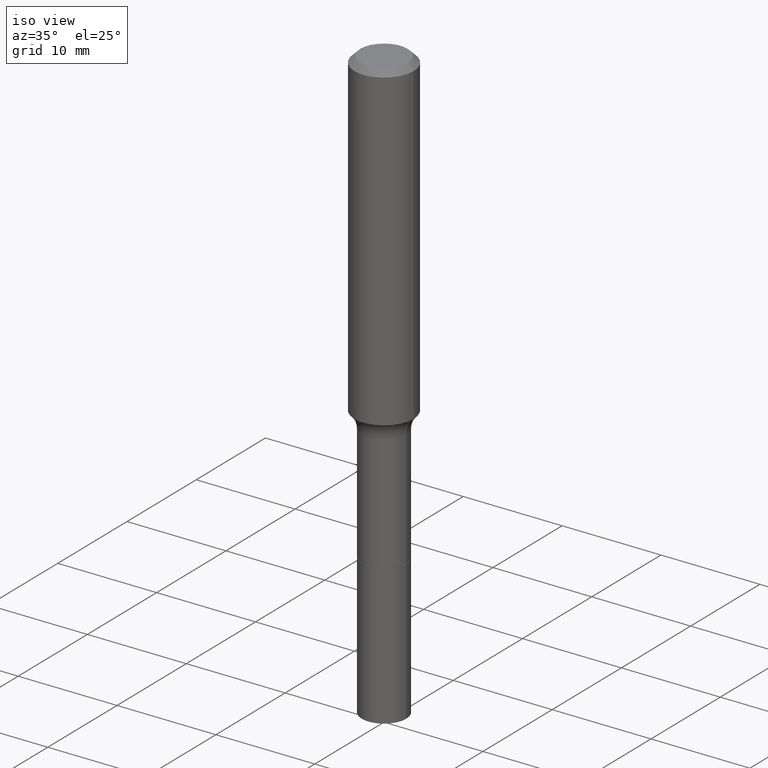
[diagram: clean part render]
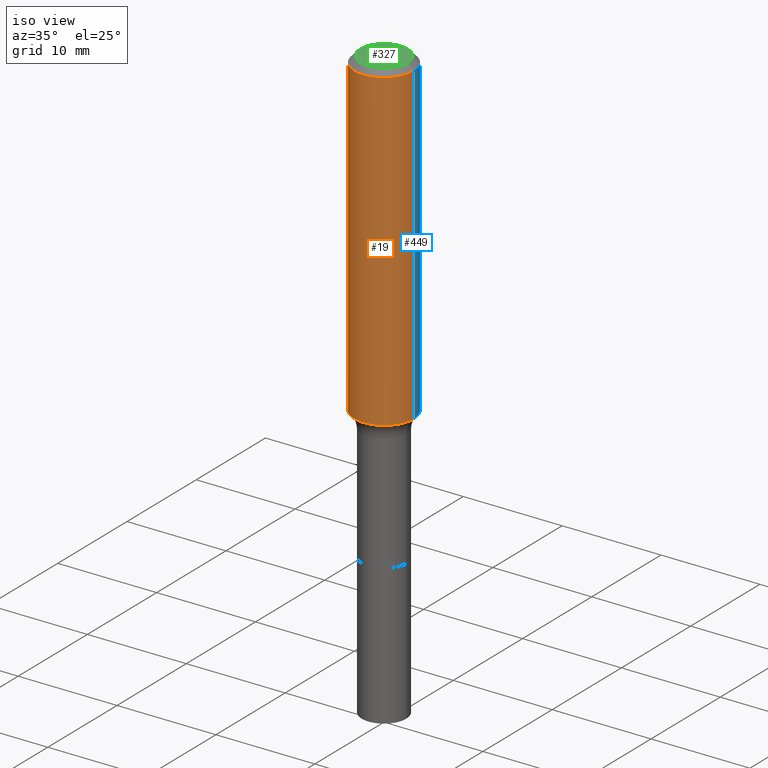
[diagram: same view with three faces highlighted in distinct colors, each labeled with its STEP entity id]
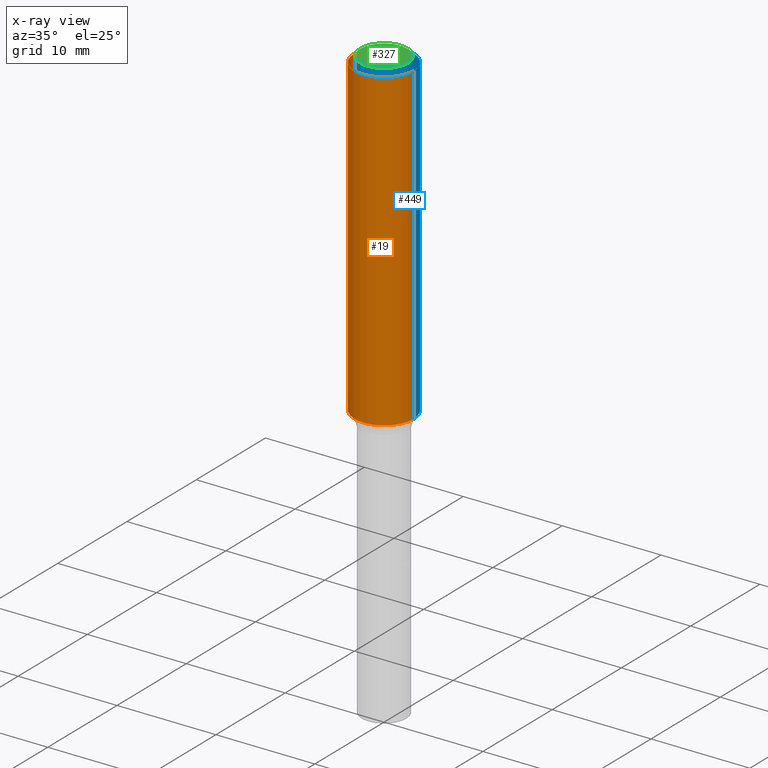
[diagram: x-ray of the same camera — body ghosted, the three highlighted faces saturated]
A machine part, iso view with three faces highlighted in distinct colors.
The next image is the same camera in x-ray (body ghosted, the three faces saturated) — at least one of them is partly hidden behind the body in this view.
Their STEP definitions:

[orange] entity #19 — the highlighted cylindrical surface (edge-blend (fillet) strip) has radius 2.9997 mm, axis along (-0, 0, 1).
#7 = VERTEX_POINT ( 'NONE', #48 ) ;
#19 = ADVANCED_FACE ( 'NONE', ( #443 ), #323, .T. ) ;
#21 = VECTOR ( 'NONE', #253, 39.37007874015748143 ) ;
#38 = ORIENTED_EDGE ( 'NONE', *, *, #217, .T. ) ;
#48 = CARTESIAN_POINT ( 'NONE',  ( 0.1180999999999999966, -9.071566814582237199E-16, -0.02362000000000014435 ) ) ;
#67 = CARTESIAN_POINT ( 'NONE',  ( 5.776197320209328408E-31, -8.246878922347560526E-17, -0.02362000000000014435 ) ) ;
#85 = EDGE_CURVE ( 'NONE', #350, #109, #164, .T. ) ;
#102 = VECTOR ( 'NONE', #473, 39.37007874015748143 ) ;
#109 = VERTEX_POINT ( 'NONE', #122 ) ;
#112 = AXIS2_PLACEMENT_3D ( 'NONE', #203, #136, #326 ) ;
#122 = CARTESIAN_POINT ( 'NONE',  ( 0.1181000000000001493, -5.276509151379285802E-15, -1.275052285005076280 ) ) ;
#136 = DIRECTION ( 'NONE',  ( -2.445468806185136597E-29, 3.491481338843145583E-15, 1.000000000000000000 ) ) ;
#153 = DIRECTION ( 'NONE',  ( 1.000000000000000000, -6.982962677686266711E-15, 0.000000000000000000 ) ) ;
#164 = CIRCLE ( 'NONE', #377, 0.1181000000000001493 ) ;
#203 = CARTESIAN_POINT ( 'NONE',  ( 0.000000000000000000, 0.000000000000000000, 0.000000000000000000 ) ) ;
#217 = EDGE_CURVE ( 'NONE', #109, #7, #328, .T. ) ;
#233 = CARTESIAN_POINT ( 'NONE',  ( -0.1181000000000001493, -3.612670288211856187E-15, -1.275052285005076280 ) ) ;
#242 = EDGE_CURVE ( 'NONE', #500, #7, #445, .T. ) ;
#245 = CARTESIAN_POINT ( 'NONE',  ( 3.118100589234994033E-29, -4.451821259144535962E-15, -1.275052285005076280 ) ) ;
#253 = DIRECTION ( 'NONE',  ( -2.445468806185136877E-29, 3.491481338843145188E-15, 1.000000000000000000 ) ) ;
#280 = DIRECTION ( 'NONE',  ( -2.445468806185136597E-29, 3.491481338843145583E-15, 1.000000000000000000 ) ) ;
#298 = ORIENTED_EDGE ( 'NONE', *, *, #85, .T. ) ;
#305 = CARTESIAN_POINT ( 'NONE',  ( -0.1181000000000000660, 8.391509709326787887E-16, -5.809262341591047287E-30 ) ) ;
#310 = CARTESIAN_POINT ( 'NONE',  ( -0.1180999999999999966, -1.427994053251326329E-15, -0.02362000000000014435 ) ) ;
#323 = CYLINDRICAL_SURFACE ( 'NONE', #112, 0.1181000000000000660 ) ;
#326 = DIRECTION ( 'NONE',  ( 1.000000000000000000, -6.982962677686266711E-15, 4.876176775795936353E-29 ) ) ;
#328 = LINE ( 'NONE', #499, #21 ) ;
#338 = AXIS2_PLACEMENT_3D ( 'NONE', #67, #475, #153 ) ;
#339 = LINE ( 'NONE', #305, #102 ) ;
#350 = VERTEX_POINT ( 'NONE', #233 ) ;
#377 = AXIS2_PLACEMENT_3D ( 'NONE', #245, #280, #404 ) ;
#404 = DIRECTION ( 'NONE',  ( 1.000000000000000000, -6.982962677686264344E-15, 0.000000000000000000 ) ) ;
#406 = ORIENTED_EDGE ( 'NONE', *, *, #417, .F. ) ;
#417 = EDGE_CURVE ( 'NONE', #350, #500, #339, .T. ) ;
#436 = ORIENTED_EDGE ( 'NONE', *, *, #242, .F. ) ;
#443 = FACE_OUTER_BOUND ( 'NONE', #463, .T. ) ;
#445 = CIRCLE ( 'NONE', #338, 0.1180999999999999966 ) ;
#463 = EDGE_LOOP ( 'NONE', ( #406, #298, #38, #436 ) ) ;
#473 = DIRECTION ( 'NONE',  ( -2.445468806185136877E-29, 3.491481338843145188E-15, 1.000000000000000000 ) ) ;
#475 = DIRECTION ( 'NONE',  ( -2.445468806185136597E-29, 3.491481338843145583E-15, 1.000000000000000000 ) ) ;
#499 = CARTESIAN_POINT ( 'NONE',  ( 0.1181000000000000660, -8.246878922347485584E-16, 5.758764772215003944E-30 ) ) ;
#500 = VERTEX_POINT ( 'NONE', #310 ) ;

[blue] entity #449 — the highlighted cylindrical surface (edge-blend (fillet) strip) has radius 2.9997 mm, axis along (-0, 0, 1).
#7 = VERTEX_POINT ( 'NONE', #48 ) ;
#21 = VECTOR ( 'NONE', #253, 39.37007874015748143 ) ;
#34 = CIRCLE ( 'NONE', #461, 0.1180999999999999966 ) ;
#35 = EDGE_CURVE ( 'NONE', #7, #500, #34, .T. ) ;
#48 = CARTESIAN_POINT ( 'NONE',  ( 0.1180999999999999966, -9.071566814582237199E-16, -0.02362000000000014435 ) ) ;
#59 = ORIENTED_EDGE ( 'NONE', *, *, #417, .T. ) ;
#74 = DIRECTION ( 'NONE',  ( 1.000000000000000000, -6.982962677686264344E-15, 0.000000000000000000 ) ) ;
#100 = CARTESIAN_POINT ( 'NONE',  ( 3.118100589234994033E-29, -4.451821259144535962E-15, -1.275052285005076280 ) ) ;
#102 = VECTOR ( 'NONE', #473, 39.37007874015748143 ) ;
#109 = VERTEX_POINT ( 'NONE', #122 ) ;
#122 = CARTESIAN_POINT ( 'NONE',  ( 0.1181000000000001493, -5.276509151379285802E-15, -1.275052285005076280 ) ) ;
#191 = AXIS2_PLACEMENT_3D ( 'NONE', #100, #266, #74 ) ;
#195 = ORIENTED_EDGE ( 'NONE', *, *, #217, .F. ) ;
#207 = DIRECTION ( 'NONE',  ( -2.445468806185136597E-29, 3.491481338843145583E-15, 1.000000000000000000 ) ) ;
#210 = DIRECTION ( 'NONE',  ( 1.000000000000000000, -6.982962677686266711E-15, 0.000000000000000000 ) ) ;
#217 = EDGE_CURVE ( 'NONE', #109, #7, #328, .T. ) ;
#233 = CARTESIAN_POINT ( 'NONE',  ( -0.1181000000000001493, -3.612670288211856187E-15, -1.275052285005076280 ) ) ;
#240 = ORIENTED_EDGE ( 'NONE', *, *, #249, .T. ) ;
#249 = EDGE_CURVE ( 'NONE', #109, #350, #410, .T. ) ;
#253 = DIRECTION ( 'NONE',  ( -2.445468806185136877E-29, 3.491481338843145188E-15, 1.000000000000000000 ) ) ;
#266 = DIRECTION ( 'NONE',  ( -2.445468806185136597E-29, 3.491481338843145583E-15, 1.000000000000000000 ) ) ;
#292 = CARTESIAN_POINT ( 'NONE',  ( 5.776197320209328408E-31, -8.246878922347560526E-17, -0.02362000000000014435 ) ) ;
#305 = CARTESIAN_POINT ( 'NONE',  ( -0.1181000000000000660, 8.391509709326787887E-16, -5.809262341591047287E-30 ) ) ;
#310 = CARTESIAN_POINT ( 'NONE',  ( -0.1180999999999999966, -1.427994053251326329E-15, -0.02362000000000014435 ) ) ;
#328 = LINE ( 'NONE', #499, #21 ) ;
#339 = LINE ( 'NONE', #305, #102 ) ;
#350 = VERTEX_POINT ( 'NONE', #233 ) ;
#358 = CYLINDRICAL_SURFACE ( 'NONE', #501, 0.1181000000000000660 ) ;
#384 = EDGE_LOOP ( 'NONE', ( #240, #59, #516, #195 ) ) ;
#395 = CARTESIAN_POINT ( 'NONE',  ( 0.000000000000000000, 0.000000000000000000, 0.000000000000000000 ) ) ;
#400 = DIRECTION ( 'NONE',  ( -2.445468806185136597E-29, 3.491481338843145583E-15, 1.000000000000000000 ) ) ;
#410 = CIRCLE ( 'NONE', #191, 0.1181000000000001493 ) ;
#411 = FACE_OUTER_BOUND ( 'NONE', #384, .T. ) ;
#417 = EDGE_CURVE ( 'NONE', #350, #500, #339, .T. ) ;
#449 = ADVANCED_FACE ( 'NONE', ( #411 ), #358, .T. ) ;
#454 = DIRECTION ( 'NONE',  ( 1.000000000000000000, -6.982962677686266711E-15, 4.876176775795936353E-29 ) ) ;
#461 = AXIS2_PLACEMENT_3D ( 'NONE', #292, #207, #210 ) ;
#473 = DIRECTION ( 'NONE',  ( -2.445468806185136877E-29, 3.491481338843145188E-15, 1.000000000000000000 ) ) ;
#499 = CARTESIAN_POINT ( 'NONE',  ( 0.1181000000000000660, -8.246878922347485584E-16, 5.758764772215003944E-30 ) ) ;
#500 = VERTEX_POINT ( 'NONE', #310 ) ;
#501 = AXIS2_PLACEMENT_3D ( 'NONE', #395, #400, #454 ) ;
#516 = ORIENTED_EDGE ( 'NONE', *, *, #35, .F. ) ;

[green] entity #327 — the highlighted planar face has unit normal (0, -0, -1).
#31 = CARTESIAN_POINT ( 'NONE',  ( 3.772893820736570314E-46, -5.386692455541008845E-32, -1.542810037565835988E-17 ) ) ;
#66 = CIRCLE ( 'NONE', #510, 0.09447999999999998066 ) ;
#80 = ORIENTED_EDGE ( 'NONE', *, *, #322, .T. ) ;
#129 = VERTEX_POINT ( 'NONE', #415 ) ;
#155 = DIRECTION ( 'NONE',  ( -1.000000000000000000, 6.982962677686265922E-15, -4.876176775795935793E-29 ) ) ;
#160 = ORIENTED_EDGE ( 'NONE', *, *, #180, .T. ) ;
#180 = EDGE_CURVE ( 'NONE', #129, #267, #353, .T. ) ;
#187 = AXIS2_PLACEMENT_3D ( 'NONE', #219, #276, #314 ) ;
#219 = CARTESIAN_POINT ( 'NONE',  ( 7.545787641473140628E-46, -1.077338491108201769E-31, -3.085620075131671975E-17 ) ) ;
#231 = CARTESIAN_POINT ( 'NONE',  ( 7.545787641473140628E-46, -1.077338491108201769E-31, -3.085620075131671975E-17 ) ) ;
#257 = CARTESIAN_POINT ( 'NONE',  ( 0.09447999999999998066, -7.704367267948738690E-16, -3.085620075131172158E-17 ) ) ;
#267 = VERTEX_POINT ( 'NONE', #257 ) ;
#276 = DIRECTION ( 'NONE',  ( -2.445468806185136597E-29, 3.491481338843145583E-15, 1.000000000000000000 ) ) ;
#300 = FACE_OUTER_BOUND ( 'NONE', #306, .T. ) ;
#306 = EDGE_LOOP ( 'NONE', ( #160, #80 ) ) ;
#307 = DIRECTION ( 'NONE',  ( -2.445468806185136597E-29, 3.491481338843145583E-15, 1.000000000000000000 ) ) ;
#314 = DIRECTION ( 'NONE',  ( 1.000000000000000000, -6.982962677686267499E-15, 4.875432709231658792E-29 ) ) ;
#322 = EDGE_CURVE ( 'NONE', #267, #129, #66, .T. ) ;
#327 = ADVANCED_FACE ( 'NONE', ( #300 ), #424, .F. ) ;
#341 = DIRECTION ( 'NONE',  ( 2.438088387897960049E-29, -3.491481338843145188E-15, -1.000000000000000000 ) ) ;
#353 = CIRCLE ( 'NONE', #187, 0.09447999999999998066 ) ;
#415 = CARTESIAN_POINT ( 'NONE',  ( -0.09447999999999998066, 7.009847083995354710E-16, -3.085620075132147757E-17 ) ) ;
#419 = DIRECTION ( 'NONE',  ( 1.000000000000000000, -6.982962677686267499E-15, 4.875432709231658792E-29 ) ) ;
#424 = PLANE ( 'NONE',  #438 ) ;
#438 = AXIS2_PLACEMENT_3D ( 'NONE', #31, #341, #155 ) ;
#510 = AXIS2_PLACEMENT_3D ( 'NONE', #231, #307, #419 ) ;